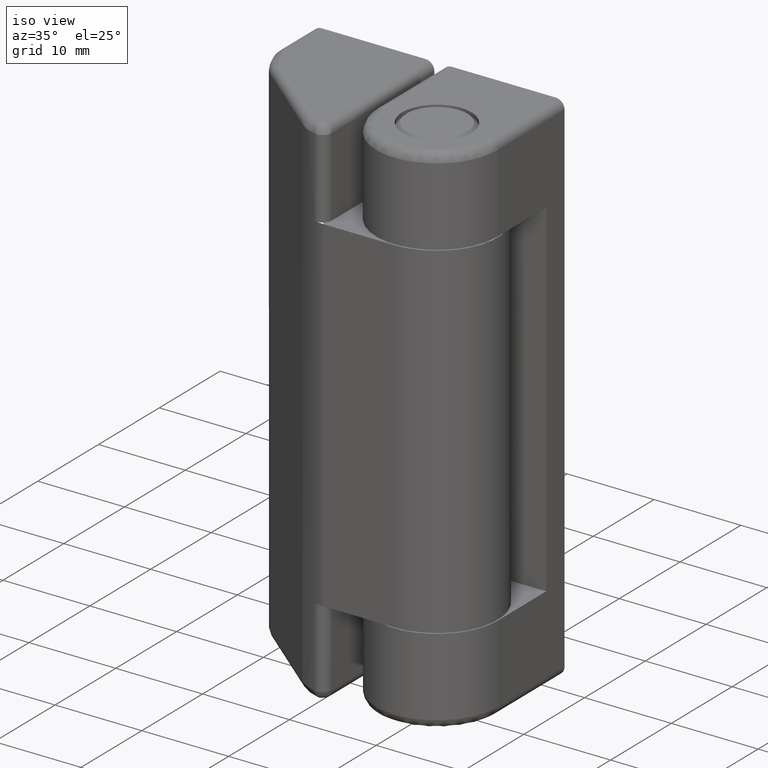
[diagram: clean part render]
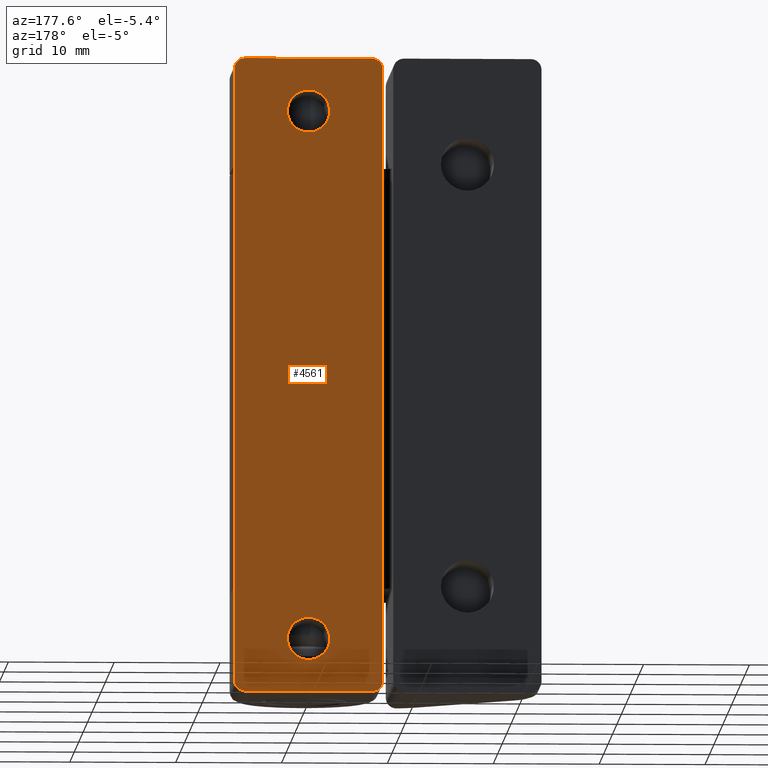
[diagram: tour spotlight — one face highlighted and labeled with its STEP entity id]
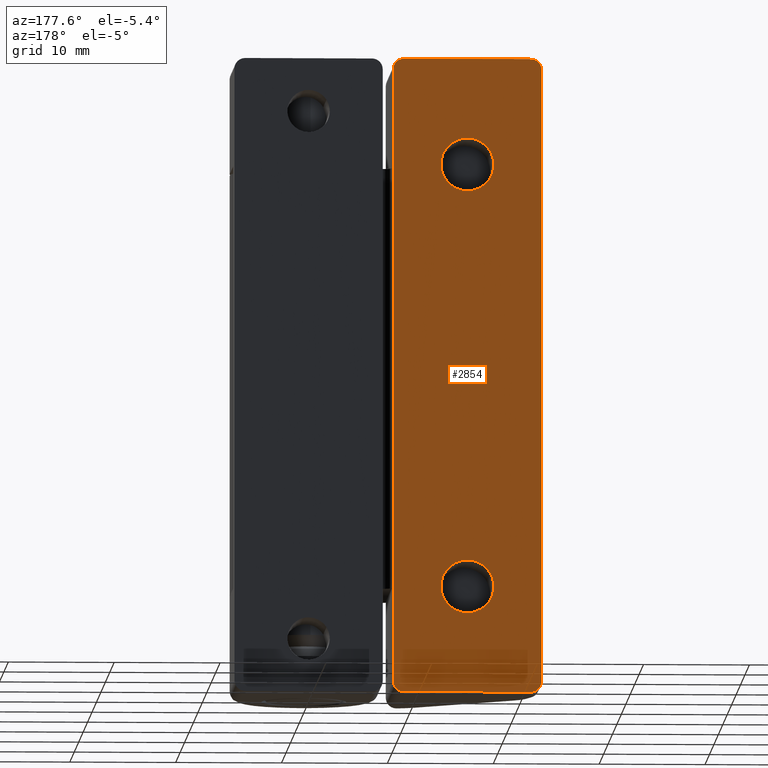
[diagram: tour spotlight — one face highlighted and labeled with its STEP entity id]
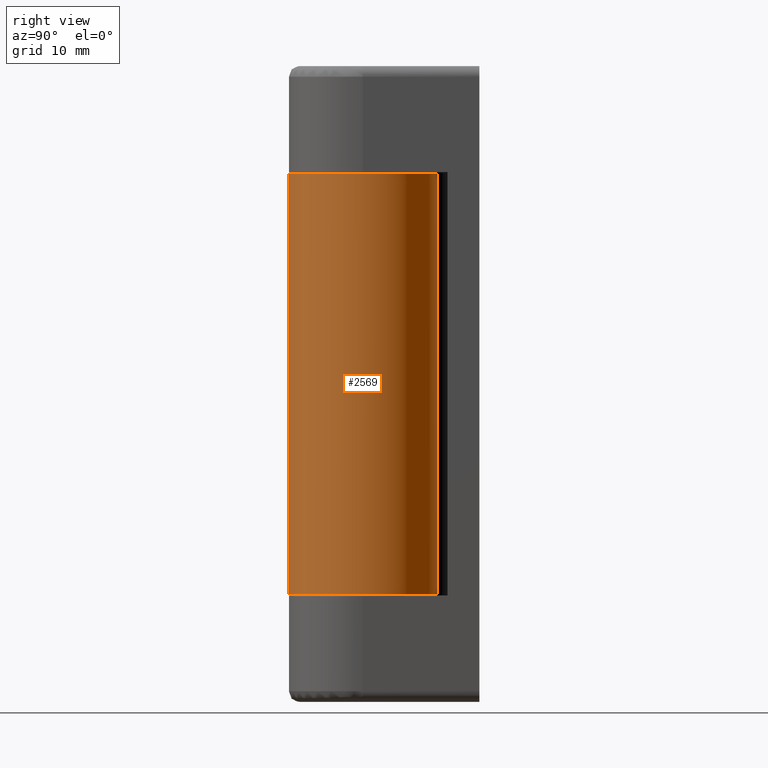
[diagram: tour spotlight — one face highlighted and labeled with its STEP entity id]
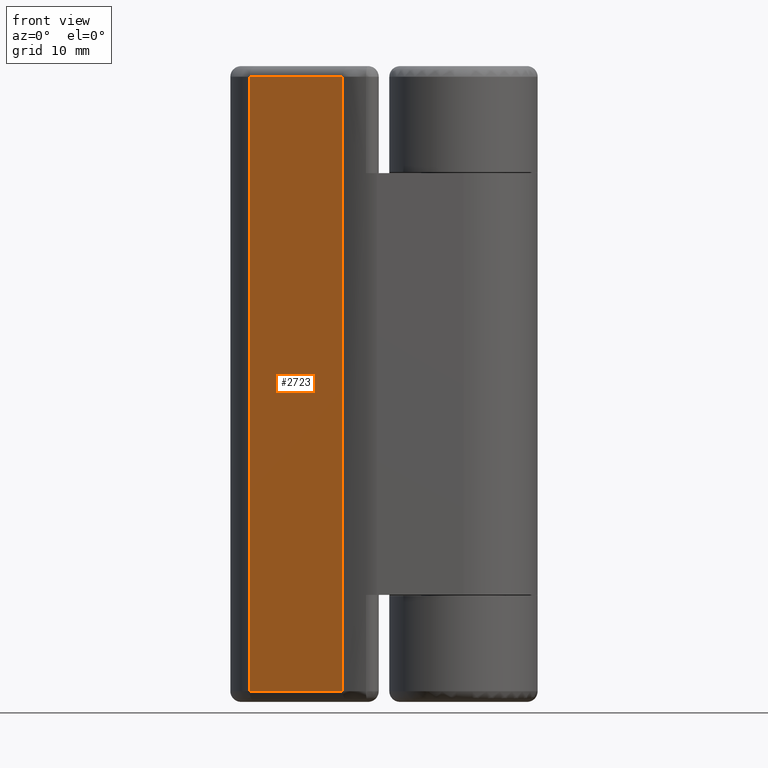
[diagram: tour spotlight — one face highlighted and labeled with its STEP entity id]
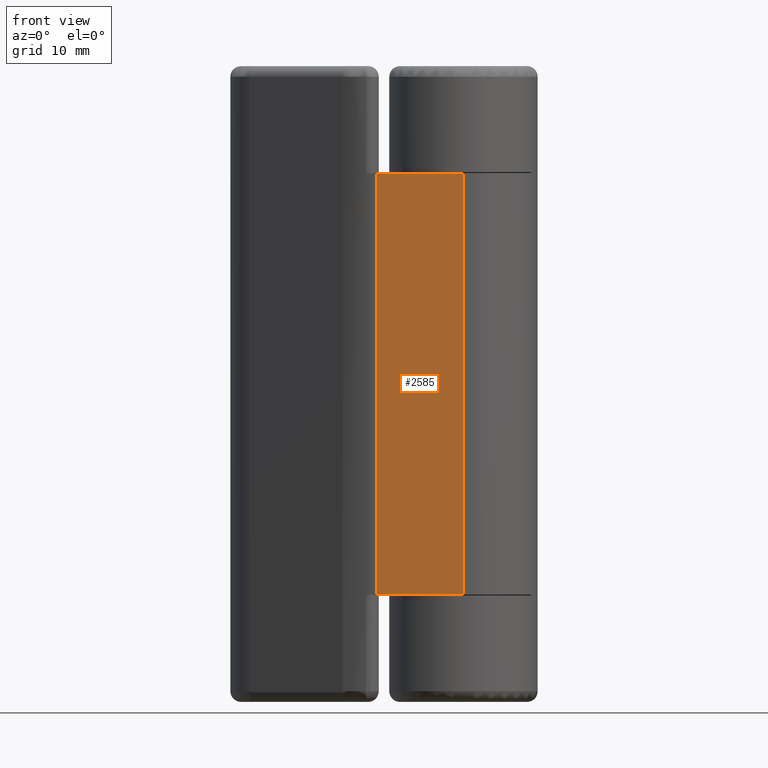
[diagram: tour spotlight — one face highlighted and labeled with its STEP entity id]
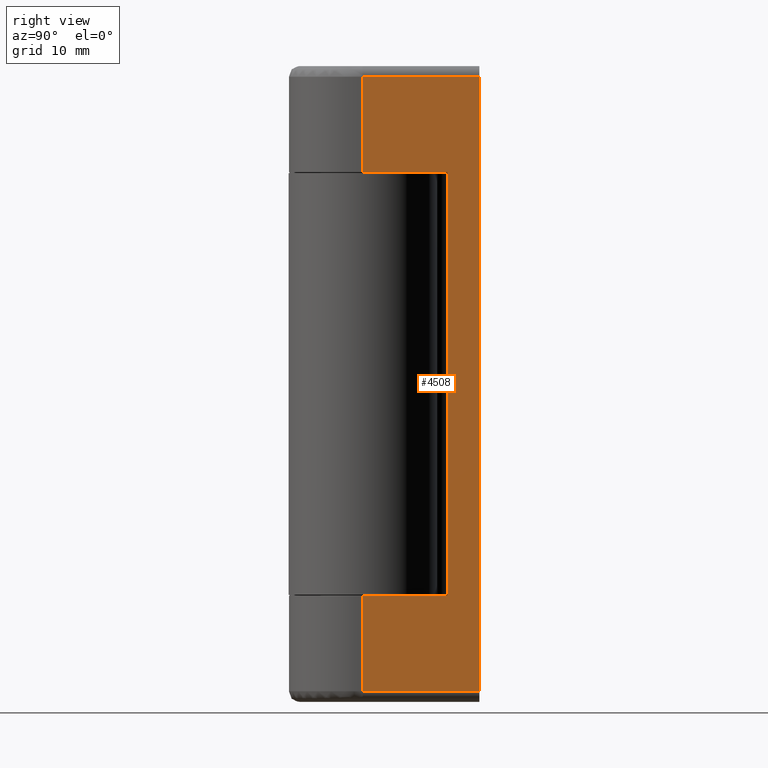
[diagram: tour spotlight — one face highlighted and labeled with its STEP entity id]
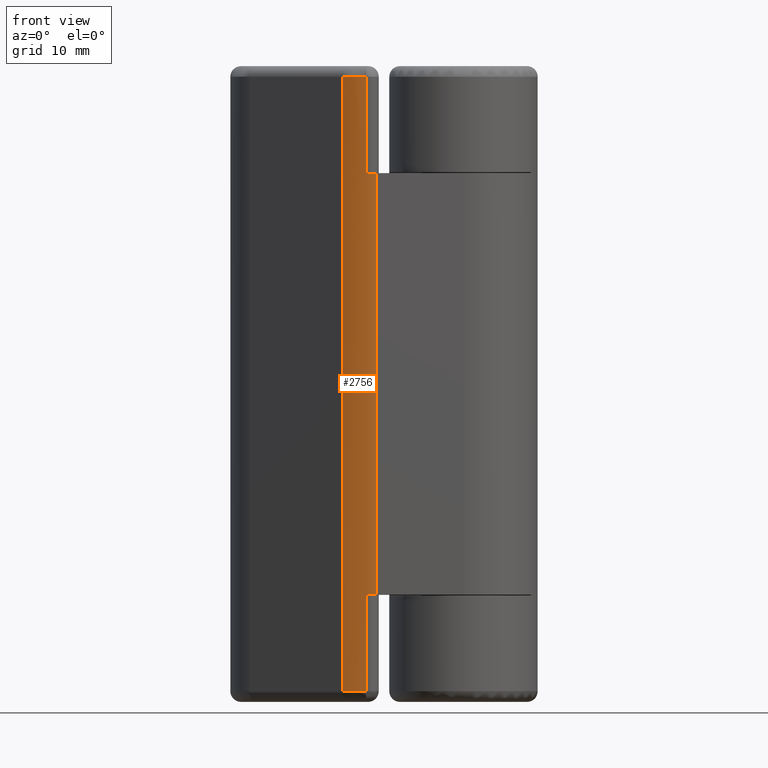
[diagram: tour spotlight — one face highlighted and labeled with its STEP entity id]
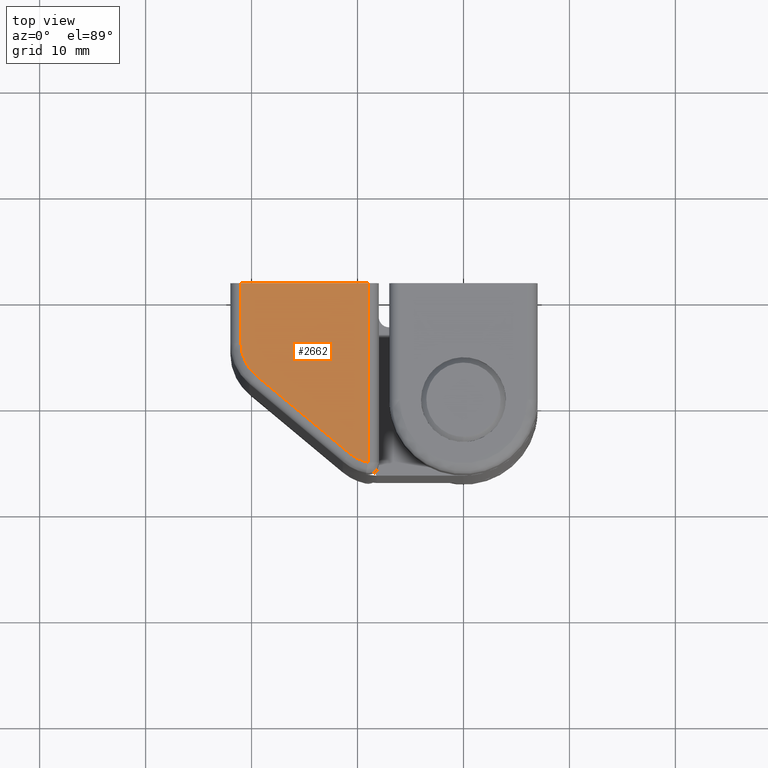
[diagram: tour spotlight — one face highlighted and labeled with its STEP entity id]
A machine part: a face-by-face anatomy tour. The part has 78 B-rep faces; the first image is the clean iso view, then the 8 largest visible faces are spotlighted one at a time (largest first), each with its STEP entity span.

Face 1 — auxiliary view, entity #4561. In plain terms, the highlighted face is a freeform B-spline surface patch.
Definition (entity closure, byte-faithful):
#2922=CARTESIAN_POINT('',(0.0,11.0,7.0));
#2923=VERTEX_POINT('',#2922);
#2924=CARTESIAN_POINT('',(-1.687752892925017,11.0,6.073075101017276));
#2925=VERTEX_POINT('',#2924);
#2926=CARTESIAN_POINT('',(0.0,11.0,7.0));
#2927=CARTESIAN_POINT('',(-1.098413047153339,11.000000000000004,7.000000000000001));
#2928=CARTESIAN_POINT('',(-1.687752892925017,11.000000000000002,6.073075101017276));
#2936=(BOUNDED_CURVE()B_SPLINE_CURVE(2,(#2926,#2927,#2928),.UNSPECIFIED.,.F.,.U.)B_SPLINE_CURVE_WITH_KNOTS((3,3),(0.0,0.158187862921422),.UNSPECIFIED.)CURVE()GEOMETRIC_REPRESENTATION_ITEM()RATIONAL_B_SPLINE_CURVE((1.0,0.814671390606894,0.863876674478544))REPRESENTATION_ITEM(''));
#2937=EDGE_CURVE('',#2923,#2925,#2936,.T.);
#2939=CARTESIAN_POINT('',(0.0,11.0,3.0));
#2940=VERTEX_POINT('',#2939);
#2941=CARTESIAN_POINT('',(0.0,11.0,3.0));
#2942=CARTESIAN_POINT('',(2.000000000000000,11.0,3.0));
#2943=CARTESIAN_POINT('',(2.0,11.0,5.0));
#2944=CARTESIAN_POINT('',(2.000000000000000,11.0,6.999999999999999));
#2945=CARTESIAN_POINT('',(0.0,11.0,7.0));
#2953=(BOUNDED_CURVE()B_SPLINE_CURVE(2,(#2941,#2942,#2943,#2944,#2945),.UNSPECIFIED.,.F.,.U.)B_SPLINE_CURVE_WITH_KNOTS((3,2,3),(0.500000000000000,0.750000000000000,1.0),.UNSPECIFIED.)CURVE()GEOMETRIC_REPRESENTATION_ITEM()RATIONAL_B_SPLINE_CURVE((1.0,0.707106781186548,1.0,0.707106781186548,1.0))REPRESENTATION_ITEM(''));
#2954=EDGE_CURVE('',#2940,#2923,#2953,.T.);
#2956=CARTESIAN_POINT('',(-1.351179258530680,11.0,3.525444266460566));
#2957=VERTEX_POINT('',#2956);
#2958=CARTESIAN_POINT('',(-1.351179258530680,11.0,3.525444266460565));
#2959=CARTESIAN_POINT('',(-0.777756560637760,11.0,3.000000000000000));
#2960=CARTESIAN_POINT('',(0.0,11.0,3.0));
#2968=(BOUNDED_CURVE()B_SPLINE_CURVE(2,(#2958,#2959,#2960),.UNSPECIFIED.,.F.,.U.)B_SPLINE_CURVE_WITH_KNOTS((3,3),(0.381584909335154,0.500000000000000),.UNSPECIFIED.)CURVE()GEOMETRIC_REPRESENTATION_ITEM()RATIONAL_B_SPLINE_CURVE((0.853959795454927,0.861268091756345,1.0))REPRESENTATION_ITEM(''));
#2969=EDGE_CURVE('',#2957,#2940,#2968,.T.);
#3111=CARTESIAN_POINT('',(-1.687752892925017,11.000000000000002,6.073075101017276));
#3112=CARTESIAN_POINT('',(-2.000000000000000,11.0,5.581966922502469));
#3113=CARTESIAN_POINT('',(-2.0,11.0,5.0));
#3114=CARTESIAN_POINT('',(-2.000000000000000,11.0,4.119978001901206));
#3115=CARTESIAN_POINT('',(-1.351179258530680,11.0,3.525444266460565));
#3123=(BOUNDED_CURVE()B_SPLINE_CURVE(2,(#3111,#3112,#3113,#3114,#3115),.UNSPECIFIED.,.F.,.U.)B_SPLINE_CURVE_WITH_KNOTS((3,2,3),(0.158187862921422,0.250000000000000,0.381584909335154),.UNSPECIFIED.)CURVE()GEOMETRIC_REPRESENTATION_ITEM()RATIONAL_B_SPLINE_CURVE((0.863876674478544,0.892435390579654,1.0,0.845838689430202,0.853959795454927))REPRESENTATION_ITEM(''));
#3124=EDGE_CURVE('',#2925,#2957,#3123,.T.);
#3196=CARTESIAN_POINT('',(0.0,11.0,57.0));
#3197=VERTEX_POINT('',#3196);
#3198=CARTESIAN_POINT('',(-1.687752892925018,11.0,56.073075101017267));
#3199=VERTEX_POINT('',#3198);
#3200=CARTESIAN_POINT('',(0.0,11.0,57.0));
#3201=CARTESIAN_POINT('',(-1.098413047153343,11.0,57.000000000000014));
#3202=CARTESIAN_POINT('',(-1.687752892925018,11.000000000000002,56.073075101017281));
#3210=(BOUNDED_CURVE()B_SPLINE_CURVE(2,(#3200,#3201,#3202),.UNSPECIFIED.,.F.,.U.)B_SPLINE_CURVE_WITH_KNOTS((3,3),(0.0,0.158187862921423),.UNSPECIFIED.)CURVE()GEOMETRIC_REPRESENTATION_ITEM()RATIONAL_B_SPLINE_CURVE((1.0,0.814671390606893,0.863876674478544))REPRESENTATION_ITEM(''));
#3211=EDGE_CURVE('',#3197,#3199,#3210,.T.);
#3213=CARTESIAN_POINT('',(0.0,11.0,53.0));
#3214=VERTEX_POINT('',#3213);
#3215=CARTESIAN_POINT('',(0.0,11.0,53.0));
#3216=CARTESIAN_POINT('',(2.000000000000000,11.0,53.0));
#3217=CARTESIAN_POINT('',(2.0,11.0,55.0));
#3218=CARTESIAN_POINT('',(2.000000000000000,11.0,57.000000000000014));
#3219=CARTESIAN_POINT('',(0.0,11.0,57.0));
#3227=(BOUNDED_CURVE()B_SPLINE_CURVE(2,(#3215,#3216,#3217,#3218,#3219),.UNSPECIFIED.,.F.,.U.)B_SPLINE_CURVE_WITH_KNOTS((3,2,3),(0.500000000000000,0.750000000000000,1.0),.UNSPECIFIED.)CURVE()GEOMETRIC_REPRESENTATION_ITEM()RATIONAL_B_SPLINE_CURVE((1.0,0.707106781186548,1.0,0.707106781186548,1.0))REPRESENTATION_ITEM(''));
#3228=EDGE_CURVE('',#3214,#3197,#3227,.T.);
#3230=CARTESIAN_POINT('',(-1.351179258530679,11.0,53.525444266460568));
#3231=VERTEX_POINT('',#3230);
#3232=CARTESIAN_POINT('',(-1.351179258530680,11.0,53.525444266460568));
#3233=CARTESIAN_POINT('',(-0.777756560637760,11.0,53.000000000000014));
#3234=CARTESIAN_POINT('',(0.0,11.0,53.0));
#3242=(BOUNDED_CURVE()B_SPLINE_CURVE(2,(#3232,#3233,#3234),.UNSPECIFIED.,.F.,.U.)B_SPLINE_CURVE_WITH_KNOTS((3,3),(0.381584909335154,0.500000000000000),.UNSPECIFIED.)CURVE()GEOMETRIC_REPRESENTATION_ITEM()RATIONAL_B_SPLINE_CURVE((0.853959795454927,0.861268091756345,1.0))REPRESENTATION_ITEM(''));
#3243=EDGE_CURVE('',#3231,#3214,#3242,.T.);
#3385=CARTESIAN_POINT('',(-1.687752892925018,11.000000000000002,56.073075101017281));
#3386=CARTESIAN_POINT('',(-2.000000000000000,11.0,55.581966922502460));
#3387=CARTESIAN_POINT('',(-2.0,11.0,55.0));
#3388=CARTESIAN_POINT('',(-2.000000000000000,11.0,54.119978001901202));
#3389=CARTESIAN_POINT('',(-1.351179258530680,11.0,53.525444266460568));
#3397=(BOUNDED_CURVE()B_SPLINE_CURVE(2,(#3385,#3386,#3387,#3388,#3389),.UNSPECIFIED.,.F.,.U.)B_SPLINE_CURVE_WITH_KNOTS((3,2,3),(0.158187862921423,0.250000000000000,0.381584909335153),.UNSPECIFIED.)CURVE()GEOMETRIC_REPRESENTATION_ITEM()RATIONAL_B_SPLINE_CURVE((0.863876674478544,0.892435390579654,1.0,0.845838689430203,0.853959795454927))REPRESENTATION_ITEM(''));
#3398=EDGE_CURVE('',#3199,#3231,#3397,.T.);
#3919=CARTESIAN_POINT('',(-7.0,11.0,1.0));
#3920=VERTEX_POINT('',#3919);
#3926=CARTESIAN_POINT('',(-6.0,11.0,0.0));
#3927=VERTEX_POINT('',#3926);
#3928=CARTESIAN_POINT('',(-6.0,11.0,0.0));
#3929=CARTESIAN_POINT('',(-6.999999999999999,11.0,0.0));
#3930=CARTESIAN_POINT('',(-7.0,11.0,1.0));
#3938=(BOUNDED_CURVE()B_SPLINE_CURVE(2,(#3928,#3929,#3930),.UNSPECIFIED.,.F.,.U.)CURVE()GEOMETRIC_REPRESENTATION_ITEM()QUASI_UNIFORM_CURVE()RATIONAL_B_SPLINE_CURVE((1.0,0.707106781186548,1.0))REPRESENTATION_ITEM(''));
#3939=EDGE_CURVE('',#3927,#3920,#3938,.T.);
#4041=CARTESIAN_POINT('',(7.0,11.0,1.0));
#4042=VERTEX_POINT('',#4041);
#4043=CARTESIAN_POINT('',(6.0,11.0,0.0));
#4044=VERTEX_POINT('',#4043);
#4045=CARTESIAN_POINT('',(7.0,11.0,1.0));
#4046=CARTESIAN_POINT('',(6.999999999999999,11.0,0.0));
#4047=CARTESIAN_POINT('',(6.0,11.0,0.0));
#4055=(BOUNDED_CURVE()B_SPLINE_CURVE(2,(#4045,#4046,#4047),.UNSPECIFIED.,.F.,.U.)CURVE()GEOMETRIC_REPRESENTATION_ITEM()QUASI_UNIFORM_CURVE()RATIONAL_B_SPLINE_CURVE((1.0,0.707106781186548,1.0))REPRESENTATION_ITEM(''));
#4056=EDGE_CURVE('',#4042,#4044,#4055,.T.);
#4103=CARTESIAN_POINT('',(-6.0,11.0,60.0));
#4104=VERTEX_POINT('',#4103);
#4110=CARTESIAN_POINT('',(-7.0,11.0,59.0));
#4111=VERTEX_POINT('',#4110);
#4112=CARTESIAN_POINT('',(-7.0,11.0,59.0));
#4113=CARTESIAN_POINT('',(-6.999999999999999,11.0,60.0));
#4114=CARTESIAN_POINT('',(-6.0,11.0,60.0));
#4122=(BOUNDED_CURVE()B_SPLINE_CURVE(2,(#4112,#4113,#4114),.UNSPECIFIED.,.F.,.U.)CURVE()GEOMETRIC_REPRESENTATION_ITEM()QUASI_UNIFORM_CURVE()RATIONAL_B_SPLINE_CURVE((1.0,0.707106781186548,1.0))REPRESENTATION_ITEM(''));
#4123=EDGE_CURVE('',#4111,#4104,#4122,.T.);
#4225=CARTESIAN_POINT('',(6.0,11.0,60.0));
#4226=VERTEX_POINT('',#4225);
#4227=CARTESIAN_POINT('',(7.0,11.0,59.0));
#4228=VERTEX_POINT('',#4227);
#4229=CARTESIAN_POINT('',(6.0,11.0,60.0));
#4230=CARTESIAN_POINT('',(6.999999999999999,11.0,60.0));
#4231=CARTESIAN_POINT('',(7.0,11.0,59.0));
#4239=(BOUNDED_CURVE()B_SPLINE_CURVE(2,(#4229,#4230,#4231),.UNSPECIFIED.,.F.,.U.)CURVE()GEOMETRIC_REPRESENTATION_ITEM()QUASI_UNIFORM_CURVE()RATIONAL_B_SPLINE_CURVE((1.0,0.707106781186548,1.0))REPRESENTATION_ITEM(''));
#4240=EDGE_CURVE('',#4226,#4228,#4239,.T.);
#4391=CARTESIAN_POINT('',(-6.0,11.0,0.0));
#4392=CARTESIAN_POINT('',(6.0,11.0,0.0));
#4393=QUASI_UNIFORM_CURVE('',1,(#4391,#4392),.UNSPECIFIED.,.F.,.U.);
#4394=EDGE_CURVE('',#3927,#4044,#4393,.T.);
#4411=CARTESIAN_POINT('',(-6.0,11.0,60.0));
#4412=CARTESIAN_POINT('',(6.0,11.0,60.0));
#4413=QUASI_UNIFORM_CURVE('',1,(#4411,#4412),.UNSPECIFIED.,.F.,.U.);
#4414=EDGE_CURVE('',#4104,#4226,#4413,.T.);
#4433=CARTESIAN_POINT('',(-7.0,11.0,59.0));
#4434=CARTESIAN_POINT('',(-7.0,11.0,1.0));
#4435=QUASI_UNIFORM_CURVE('',1,(#4433,#4434),.UNSPECIFIED.,.F.,.U.);
#4436=EDGE_CURVE('',#4111,#3920,#4435,.T.);
#4492=CARTESIAN_POINT('',(7.0,11.0,59.0));
#4493=CARTESIAN_POINT('',(7.0,11.0,1.0));
#4494=QUASI_UNIFORM_CURVE('',1,(#4492,#4493),.UNSPECIFIED.,.F.,.U.);
#4495=EDGE_CURVE('',#4228,#4042,#4494,.T.);
#4534=CARTESIAN_POINT('',(-7.699299972865286,11.0,-2.996999883708359));
#4535=CARTESIAN_POINT('',(-7.699299972865286,11.0,62.997001493033771));
#4536=CARTESIAN_POINT('',(7.699300348374547,11.0,-2.996999883708359));
#4537=CARTESIAN_POINT('',(7.699300348374547,11.0,62.997001493033771));
#4538=B_SPLINE_SURFACE_WITH_KNOTS('',1,1,((#4534,#4536),(#4535,#4537)),.UNSPECIFIED.,.F.,.F.,.U.,(2,2),(2,2),(0.0,65.994001376742133),(0.0,15.398600321239829),.UNSPECIFIED.);
#4539=ORIENTED_EDGE('',*,*,#4394,.F.);
#4540=ORIENTED_EDGE('',*,*,#3939,.T.);
#4541=ORIENTED_EDGE('',*,*,#4436,.F.);
#4542=ORIENTED_EDGE('',*,*,#4123,.T.);
#4543=ORIENTED_EDGE('',*,*,#4414,.T.);
#4544=ORIENTED_EDGE('',*,*,#4240,.T.);
#4545=ORIENTED_EDGE('',*,*,#4495,.T.);
#4546=ORIENTED_EDGE('',*,*,#4056,.T.);
#4547=EDGE_LOOP('',(#4539,#4540,#4541,#4542,#4543,#4544,#4545,#4546));
#4548=FACE_OUTER_BOUND('',#4547,.T.);
#4549=ORIENTED_EDGE('',*,*,#3228,.T.);
#4550=ORIENTED_EDGE('',*,*,#3211,.T.);
#4551=ORIENTED_EDGE('',*,*,#3398,.T.);
#4552=ORIENTED_EDGE('',*,*,#3243,.T.);
#4553=EDGE_LOOP('',(#4549,#4550,#4551,#4552));
#4554=FACE_BOUND('',#4553,.T.);
#4555=ORIENTED_EDGE('',*,*,#2954,.T.);
#4556=ORIENTED_EDGE('',*,*,#2937,.T.);
#4557=ORIENTED_EDGE('',*,*,#3124,.T.);
#4558=ORIENTED_EDGE('',*,*,#2969,.T.);
#4559=EDGE_LOOP('',(#4555,#4556,#4557,#4558));
#4560=FACE_BOUND('',#4559,.T.);
#4561=ADVANCED_FACE('',(#4548,#4554,#4560),#4538,.T.);

Face 2 — auxiliary view, entity #2854. In plain terms, the highlighted face is a freeform B-spline surface patch.
Definition (entity closure, byte-faithful):
#1116=CARTESIAN_POINT('',(-17.492293334330132,11.0,50.196147739353762));
#1117=VERTEX_POINT('',#1116);
#1123=CARTESIAN_POINT('',(-15.0,11.0,52.500000000000007));
#1124=VERTEX_POINT('',#1123);
#1125=CARTESIAN_POINT('',(-15.0,11.0,52.500000000000007));
#1126=CARTESIAN_POINT('',(-17.310976229081998,11.0,52.500000000000007));
#1127=CARTESIAN_POINT('',(-17.492293334330125,10.999999999999996,50.196147739353755));
#1135=(BOUNDED_CURVE()B_SPLINE_CURVE(2,(#1125,#1126,#1127),.UNSPECIFIED.,.F.,.U.)B_SPLINE_CURVE_WITH_KNOTS((3,3),(0.0,0.236331300628070),.UNSPECIFIED.)CURVE()GEOMETRIC_REPRESENTATION_ITEM()RATIONAL_B_SPLINE_CURVE((1.0,0.723120658610700,0.969723356162013))REPRESENTATION_ITEM(''));
#1136=EDGE_CURVE('',#1124,#1117,#1135,.T.);
#1138=CARTESIAN_POINT('',(-12.507706665669870,11.0,49.803852260646238));
#1139=VERTEX_POINT('',#1138);
#1140=CARTESIAN_POINT('',(-12.507706665669870,10.999999999999996,49.803852260646238));
#1141=CARTESIAN_POINT('',(-12.500000000000002,11.000000000000004,49.901774732446526));
#1142=CARTESIAN_POINT('',(-12.500000000000000,11.0,50.0));
#1143=CARTESIAN_POINT('',(-12.499999999999996,11.0,52.500000000000007));
#1144=CARTESIAN_POINT('',(-15.0,11.0,52.500000000000007));
#1152=(BOUNDED_CURVE()B_SPLINE_CURVE(2,(#1140,#1141,#1142,#1143,#1144),.UNSPECIFIED.,.F.,.U.)B_SPLINE_CURVE_WITH_KNOTS((3,2,3),(0.736331300628070,0.750000000000000,1.0),.UNSPECIFIED.)CURVE()GEOMETRIC_REPRESENTATION_ITEM()RATIONAL_B_SPLINE_CURVE((0.969723356162013,0.983986122575848,1.0,0.707106781186548,1.0))REPRESENTATION_ITEM(''));
#1153=EDGE_CURVE('',#1139,#1124,#1152,.T.);
#1229=CARTESIAN_POINT('',(-15.0,11.0,47.500000000000000));
#1230=VERTEX_POINT('',#1229);
#1231=CARTESIAN_POINT('',(-15.0,11.0,47.500000000000000));
#1232=CARTESIAN_POINT('',(-12.689023770917995,11.0,47.500000000000007));
#1233=CARTESIAN_POINT('',(-12.507706665669870,10.999999999999996,49.803852260646238));
#1241=(BOUNDED_CURVE()B_SPLINE_CURVE(2,(#1231,#1232,#1233),.UNSPECIFIED.,.F.,.U.)B_SPLINE_CURVE_WITH_KNOTS((3,3),(0.500000000000000,0.736331300628070),.UNSPECIFIED.)CURVE()GEOMETRIC_REPRESENTATION_ITEM()RATIONAL_B_SPLINE_CURVE((1.0,0.723120658610700,0.969723356162013))REPRESENTATION_ITEM(''));
#1242=EDGE_CURVE('',#1230,#1139,#1241,.T.);
#1244=CARTESIAN_POINT('',(-17.492293334330132,11.000000000000005,50.196147739353762));
#1245=CARTESIAN_POINT('',(-17.500000000000004,11.000000000000002,50.098225267553481));
#1246=CARTESIAN_POINT('',(-17.500000000000000,11.0,50.0));
#1247=CARTESIAN_POINT('',(-17.499999999999996,11.0,47.500000000000021));
#1248=CARTESIAN_POINT('',(-15.0,11.0,47.500000000000000));
#1256=(BOUNDED_CURVE()B_SPLINE_CURVE(2,(#1244,#1245,#1246,#1247,#1248),.UNSPECIFIED.,.F.,.U.)B_SPLINE_CURVE_WITH_KNOTS((3,2,3),(0.236331300628070,0.250000000000000,0.500000000000000),.UNSPECIFIED.)CURVE()GEOMETRIC_REPRESENTATION_ITEM()RATIONAL_B_SPLINE_CURVE((0.969723356162013,0.983986122575848,1.0,0.707106781186548,1.0))REPRESENTATION_ITEM(''));
#1257=EDGE_CURVE('',#1117,#1230,#1256,.T.);
#1298=CARTESIAN_POINT('',(-17.492293334330132,11.0,10.196147739353760));
#1299=VERTEX_POINT('',#1298);
#1305=CARTESIAN_POINT('',(-15.0,11.0,12.500000000000000));
#1306=VERTEX_POINT('',#1305);
#1307=CARTESIAN_POINT('',(-15.0,11.0,12.500000000000000));
#1308=CARTESIAN_POINT('',(-17.310976229081998,11.0,12.499999999999998));
#1309=CARTESIAN_POINT('',(-17.492293334330125,11.000000000000005,10.196147739353757));
#1317=(BOUNDED_CURVE()B_SPLINE_CURVE(2,(#1307,#1308,#1309),.UNSPECIFIED.,.F.,.U.)B_SPLINE_CURVE_WITH_KNOTS((3,3),(0.0,0.236331300628070),.UNSPECIFIED.)CURVE()GEOMETRIC_REPRESENTATION_ITEM()RATIONAL_B_SPLINE_CURVE((1.0,0.723120658610700,0.969723356162013))REPRESENTATION_ITEM(''));
#1318=EDGE_CURVE('',#1306,#1299,#1317,.T.);
#1320=CARTESIAN_POINT('',(-12.507706665669870,11.0,9.803852260646243));
#1321=VERTEX_POINT('',#1320);
#1322=CARTESIAN_POINT('',(-12.507706665669868,11.000000000000004,9.803852260646243));
#1323=CARTESIAN_POINT('',(-12.500000000000002,11.000000000000002,9.901774732446524));
#1324=CARTESIAN_POINT('',(-12.500000000000000,11.0,10.0));
#1325=CARTESIAN_POINT('',(-12.499999999999996,11.0,12.500000000000000));
#1326=CARTESIAN_POINT('',(-15.0,11.0,12.500000000000000));
#1334=(BOUNDED_CURVE()B_SPLINE_CURVE(2,(#1322,#1323,#1324,#1325,#1326),.UNSPECIFIED.,.F.,.U.)B_SPLINE_CURVE_WITH_KNOTS((3,2,3),(0.736331300628070,0.750000000000000,1.0),.UNSPECIFIED.)CURVE()GEOMETRIC_REPRESENTATION_ITEM()RATIONAL_B_SPLINE_CURVE((0.969723356162013,0.983986122575848,1.0,0.707106781186548,1.0))REPRESENTATION_ITEM(''));
#1335=EDGE_CURVE('',#1321,#1306,#1334,.T.);
#1411=CARTESIAN_POINT('',(-15.0,11.0,7.500000000000000));
#1412=VERTEX_POINT('',#1411);
#1413=CARTESIAN_POINT('',(-15.0,11.0,7.500000000000000));
#1414=CARTESIAN_POINT('',(-12.689023770917995,11.0,7.500000000000000));
#1415=CARTESIAN_POINT('',(-12.507706665669870,10.999999999999996,9.803852260646243));
#1423=(BOUNDED_CURVE()B_SPLINE_CURVE(2,(#1413,#1414,#1415),.UNSPECIFIED.,.F.,.U.)B_SPLINE_CURVE_WITH_KNOTS((3,3),(0.500000000000000,0.736331300628070),.UNSPECIFIED.)CURVE()GEOMETRIC_REPRESENTATION_ITEM()RATIONAL_B_SPLINE_CURVE((1.0,0.723120658610700,0.969723356162013))REPRESENTATION_ITEM(''));
#1424=EDGE_CURVE('',#1412,#1321,#1423,.T.);
#1426=CARTESIAN_POINT('',(-17.492293334330132,11.000000000000004,10.196147739353757));
#1427=CARTESIAN_POINT('',(-17.500000000000004,11.000000000000002,10.098225267553476));
#1428=CARTESIAN_POINT('',(-17.500000000000000,11.0,10.0));
#1429=CARTESIAN_POINT('',(-17.499999999999996,11.0,7.500000000000000));
#1430=CARTESIAN_POINT('',(-15.0,11.0,7.500000000000000));
#1438=(BOUNDED_CURVE()B_SPLINE_CURVE(2,(#1426,#1427,#1428,#1429,#1430),.UNSPECIFIED.,.F.,.U.)B_SPLINE_CURVE_WITH_KNOTS((3,2,3),(0.236331300628070,0.250000000000000,0.500000000000000),.UNSPECIFIED.)CURVE()GEOMETRIC_REPRESENTATION_ITEM()RATIONAL_B_SPLINE_CURVE((0.969723356162013,0.983986122575848,1.0,0.707106781186548,1.0))REPRESENTATION_ITEM(''));
#1439=EDGE_CURVE('',#1299,#1412,#1438,.T.);
#1666=CARTESIAN_POINT('',(-21.0,11.0,60.0));
#1667=VERTEX_POINT('',#1666);
#1673=CARTESIAN_POINT('',(-22.0,11.0,59.0));
#1674=VERTEX_POINT('',#1673);
#1675=CARTESIAN_POINT('',(-22.0,11.0,59.0));
#1676=CARTESIAN_POINT('',(-22.000000000000007,11.0,60.0));
#1677=CARTESIAN_POINT('',(-21.0,11.0,60.0));
#1685=(BOUNDED_CURVE()B_SPLINE_CURVE(2,(#1675,#1676,#1677),.UNSPECIFIED.,.F.,.U.)CURVE()GEOMETRIC_REPRESENTATION_ITEM()QUASI_UNIFORM_CURVE()RATIONAL_B_SPLINE_CURVE((1.0,0.707106781186548,1.0))REPRESENTATION_ITEM(''));
#1686=EDGE_CURVE('',#1674,#1667,#1685,.T.);
#1944=CARTESIAN_POINT('',(-8.0,11.0,59.0));
#1945=VERTEX_POINT('',#1944);
#1951=CARTESIAN_POINT('',(-9.0,11.0,60.0));
#1952=VERTEX_POINT('',#1951);
#1953=CARTESIAN_POINT('',(-9.0,11.0,60.0));
#1954=CARTESIAN_POINT('',(-8.0,11.0,60.0));
#1955=CARTESIAN_POINT('',(-8.0,11.0,59.0));
#1963=(BOUNDED_CURVE()B_SPLINE_CURVE(2,(#1953,#1954,#1955),.UNSPECIFIED.,.F.,.U.)CURVE()GEOMETRIC_REPRESENTATION_ITEM()QUASI_UNIFORM_CURVE()RATIONAL_B_SPLINE_CURVE((1.0,0.707106781186548,1.0))REPRESENTATION_ITEM(''));
#1964=EDGE_CURVE('',#1952,#1945,#1963,.T.);
#2005=CARTESIAN_POINT('',(-22.0,11.0,1.0));
#2006=VERTEX_POINT('',#2005);
#2012=CARTESIAN_POINT('',(-21.0,11.0,0.0));
#2013=VERTEX_POINT('',#2012);
#2014=CARTESIAN_POINT('',(-21.0,11.0,0.0));
#2015=CARTESIAN_POINT('',(-22.000000000000007,11.0,0.0));
#2016=CARTESIAN_POINT('',(-22.0,11.0,1.0));
#2024=(BOUNDED_CURVE()B_SPLINE_CURVE(2,(#2014,#2015,#2016),.UNSPECIFIED.,.F.,.U.)CURVE()GEOMETRIC_REPRESENTATION_ITEM()QUASI_UNIFORM_CURVE()RATIONAL_B_SPLINE_CURVE((1.0,0.707106781186548,1.0))REPRESENTATION_ITEM(''));
#2025=EDGE_CURVE('',#2013,#2006,#2024,.T.);
#2280=CARTESIAN_POINT('',(-8.0,11.0,1.0));
#2281=VERTEX_POINT('',#2280);
#2282=CARTESIAN_POINT('',(-9.0,11.0,0.0));
#2283=VERTEX_POINT('',#2282);
#2284=CARTESIAN_POINT('',(-8.0,11.0,1.0));
#2285=CARTESIAN_POINT('',(-8.0,11.0,0.0));
#2286=CARTESIAN_POINT('',(-9.0,11.0,0.0));
#2294=(BOUNDED_CURVE()B_SPLINE_CURVE(2,(#2284,#2285,#2286),.UNSPECIFIED.,.F.,.U.)CURVE()GEOMETRIC_REPRESENTATION_ITEM()QUASI_UNIFORM_CURVE()RATIONAL_B_SPLINE_CURVE((1.0,0.707106781186548,1.0))REPRESENTATION_ITEM(''));
#2295=EDGE_CURVE('',#2281,#2283,#2294,.T.);
#2634=CARTESIAN_POINT('',(-21.0,11.0,0.0));
#2635=CARTESIAN_POINT('',(-9.0,11.0,0.0));
#2636=QUASI_UNIFORM_CURVE('',1,(#2634,#2635),.UNSPECIFIED.,.F.,.U.);
#2637=EDGE_CURVE('',#2013,#2283,#2636,.T.);
#2650=CARTESIAN_POINT('',(-21.0,11.0,60.0));
#2651=CARTESIAN_POINT('',(-9.0,11.0,60.0));
#2652=QUASI_UNIFORM_CURVE('',1,(#2650,#2651),.UNSPECIFIED.,.F.,.U.);
#2653=EDGE_CURVE('',#1667,#1952,#2652,.T.);
#2674=CARTESIAN_POINT('',(-22.0,11.0,59.0));
#2675=CARTESIAN_POINT('',(-22.0,11.0,1.0));
#2676=QUASI_UNIFORM_CURVE('',1,(#2674,#2675),.UNSPECIFIED.,.F.,.U.);
#2677=EDGE_CURVE('',#1674,#2006,#2676,.T.);
#2812=CARTESIAN_POINT('',(-8.0,11.0,59.0));
#2813=CARTESIAN_POINT('',(-8.0,11.0,1.0));
#2814=QUASI_UNIFORM_CURVE('',1,(#2812,#2813),.UNSPECIFIED.,.F.,.U.);
#2815=EDGE_CURVE('',#1945,#2281,#2814,.T.);
#2827=CARTESIAN_POINT('',(-22.699299972865280,11.0,-2.996999883708359));
#2828=CARTESIAN_POINT('',(-22.699299972865280,11.0,62.997001493033771));
#2829=CARTESIAN_POINT('',(-7.300699651625455,11.0,-2.996999883708359));
#2830=CARTESIAN_POINT('',(-7.300699651625455,11.0,62.997001493033771));
#2831=B_SPLINE_SURFACE_WITH_KNOTS('',1,1,((#2827,#2829),(#2828,#2830)),.UNSPECIFIED.,.F.,.F.,.U.,(2,2),(2,2),(0.0,65.994001376742133),(0.0,15.398600321239829),.UNSPECIFIED.);
#2832=ORIENTED_EDGE('',*,*,#2677,.F.);
#2833=ORIENTED_EDGE('',*,*,#1686,.T.);
#2834=ORIENTED_EDGE('',*,*,#2653,.T.);
#2835=ORIENTED_EDGE('',*,*,#1964,.T.);
#2836=ORIENTED_EDGE('',*,*,#2815,.T.);
#2837=ORIENTED_EDGE('',*,*,#2295,.T.);
#2838=ORIENTED_EDGE('',*,*,#2637,.F.);
#2839=ORIENTED_EDGE('',*,*,#2025,.T.);
#2840=EDGE_LOOP('',(#2832,#2833,#2834,#2835,#2836,#2837,#2838,#2839));
#2841=FACE_OUTER_BOUND('',#2840,.T.);
#2842=ORIENTED_EDGE('',*,*,#1424,.T.);
#2843=ORIENTED_EDGE('',*,*,#1335,.T.);
#2844=ORIENTED_EDGE('',*,*,#1318,.T.);
#2845=ORIENTED_EDGE('',*,*,#1439,.T.);
#2846=EDGE_LOOP('',(#2842,#2843,#2844,#2845));
#2847=FACE_BOUND('',#2846,.T.);
#2848=ORIENTED_EDGE('',*,*,#1242,.T.);
#2849=ORIENTED_EDGE('',*,*,#1153,.T.);
#2850=ORIENTED_EDGE('',*,*,#1136,.T.);
#2851=ORIENTED_EDGE('',*,*,#1257,.T.);
#2852=EDGE_LOOP('',(#2848,#2849,#2850,#2851));
#2853=FACE_BOUND('',#2852,.T.);
#2854=ADVANCED_FACE('',(#2841,#2847,#2853),#2831,.T.);

Face 3 — right view, entity #2569. In plain terms, the highlighted face is a freeform B-spline surface patch.
Definition (entity closure, byte-faithful):
#2340=CARTESIAN_POINT('',(2.060929E-009,6.999998510570640,10.100000000000000));
#2341=VERTEX_POINT('',#2340);
#2349=CARTESIAN_POINT('',(0.0,-7.0,10.100000000000000));
#2350=VERTEX_POINT('',#2349);
#2351=CARTESIAN_POINT('',(2.060929E-009,6.999998510570642,10.100000000000000));
#2352=CARTESIAN_POINT('',(4.045757466172233,7.005596652581271,10.099999999999998));
#2353=CARTESIAN_POINT('',(6.070253964114953,3.502797953337481,10.100000000000000));
#2354=CARTESIAN_POINT('',(8.094750462057673,-0.000000745906305,10.099999999999998));
#2355=CARTESIAN_POINT('',(6.070253963083664,-3.502799444554042,10.100000000000000));
#2356=CARTESIAN_POINT('',(4.045757464109656,-7.005598143201780,10.099999999999998));
#2357=CARTESIAN_POINT('',(4.082699E-016,-7.000000000000005,10.100000000000000));
#2365=(BOUNDED_CURVE()B_SPLINE_CURVE(2,(#2351,#2352,#2353,#2354,#2355,#2356,#2357),.UNSPECIFIED.,.F.,.U.)B_SPLINE_CURVE_WITH_KNOTS((3,2,2,3),(0.0,0.333333333333333,0.666666666666667,1.0),.UNSPECIFIED.)CURVE()GEOMETRIC_REPRESENTATION_ITEM()RATIONAL_B_SPLINE_CURVE((1.0,0.865794694001259,1.0,0.865794694001259,1.0,0.865794694001259,1.0))REPRESENTATION_ITEM(''));
#2366=EDGE_CURVE('',#2341,#2350,#2365,.T.);
#2441=CARTESIAN_POINT('',(2.060929E-009,6.999998510570640,49.899999999999999));
#2442=VERTEX_POINT('',#2441);
#2504=CARTESIAN_POINT('',(0.0,-7.0,49.899999999999999));
#2505=VERTEX_POINT('',#2504);
#2511=CARTESIAN_POINT('',(2.060929E-009,6.999998510570642,49.899999999999999));
#2512=CARTESIAN_POINT('',(4.045757466172233,7.005596652581271,49.899999999999991));
#2513=CARTESIAN_POINT('',(6.070253964114953,3.502797953337481,49.899999999999999));
#2514=CARTESIAN_POINT('',(8.094750462057673,-0.000000745906305,49.899999999999991));
#2515=CARTESIAN_POINT('',(6.070253963083664,-3.502799444554042,49.899999999999999));
#2516=CARTESIAN_POINT('',(4.045757464109656,-7.005598143201780,49.899999999999991));
#2517=CARTESIAN_POINT('',(4.082699E-016,-7.000000000000005,49.899999999999999));
#2525=(BOUNDED_CURVE()B_SPLINE_CURVE(2,(#2511,#2512,#2513,#2514,#2515,#2516,#2517),.UNSPECIFIED.,.F.,.U.)B_SPLINE_CURVE_WITH_KNOTS((3,2,2,3),(0.0,0.333333333333333,0.666666666666667,1.0),.UNSPECIFIED.)CURVE()GEOMETRIC_REPRESENTATION_ITEM()RATIONAL_B_SPLINE_CURVE((1.0,0.865794694001259,1.0,0.865794694001259,1.0,0.865794694001259,1.0))REPRESENTATION_ITEM(''));
#2526=EDGE_CURVE('',#2442,#2505,#2525,.T.);
#2537=CARTESIAN_POINT('',(-0.285973003106688,-6.993760046832258,50.895000000000003));
#2538=CARTESIAN_POINT('',(-0.285973003106688,-6.993760046832258,9.080125000000002));
#2539=CARTESIAN_POINT('',(7.148612090110605,-7.308054768594181,50.894999999999996));
#2540=CARTESIAN_POINT('',(7.148612090110605,-7.308054768594181,9.080125000000002));
#2541=CARTESIAN_POINT('',(7.008450026872967,0.131850558521558,50.895000000000003));
#2542=CARTESIAN_POINT('',(7.008450026872967,0.131850558521558,9.080125000000002));
#2543=CARTESIAN_POINT('',(6.868287963635329,7.571755885637297,50.894999999999996));
#2544=CARTESIAN_POINT('',(6.868287963635329,7.571755885637297,9.080125000000002));
#2545=CARTESIAN_POINT('',(-0.549183751064263,6.977659898403189,50.895000000000003));
#2546=CARTESIAN_POINT('',(-0.549183751064263,6.977659898403189,9.080125000000002));
#2554=(BOUNDED_SURFACE()B_SPLINE_SURFACE(1,2,((#2537,#2539,#2541,#2543,#2545),(#2538,#2540,#2542,#2544,#2546)),.UNSPECIFIED.,.F.,.F.,.U.)B_SPLINE_SURFACE_WITH_KNOTS((2,2),(3,2,3),(0.0,41.814874999999986),(0.0,12.102189867841011,24.204379735682028),.UNSPECIFIED.)GEOMETRIC_REPRESENTATION_ITEM()RATIONAL_B_SPLINE_SURFACE(((1.0,0.685182990326359,1.0,0.685182990326359,1.0),(1.0,0.685182990326359,1.0,0.685182990326359,1.0)))REPRESENTATION_ITEM('')SURFACE());
#2555=ORIENTED_EDGE('',*,*,#2366,.F.);
#2556=CARTESIAN_POINT('',(2.060929E-009,6.999998510570640,49.899999999999999));
#2557=CARTESIAN_POINT('',(2.060929E-009,6.999998510570640,10.100000000000000));
#2558=QUASI_UNIFORM_CURVE('',1,(#2556,#2557),.UNSPECIFIED.,.F.,.U.);
#2559=EDGE_CURVE('',#2442,#2341,#2558,.T.);
#2560=ORIENTED_EDGE('',*,*,#2559,.F.);
#2561=ORIENTED_EDGE('',*,*,#2526,.T.);
#2562=CARTESIAN_POINT('',(0.0,-7.0,49.899999999999999));
#2563=CARTESIAN_POINT('',(0.0,-7.0,10.100000000000000));
#2564=QUASI_UNIFORM_CURVE('',1,(#2562,#2563),.UNSPECIFIED.,.F.,.U.);
#2565=EDGE_CURVE('',#2505,#2350,#2564,.T.);
#2566=ORIENTED_EDGE('',*,*,#2565,.T.);
#2567=EDGE_LOOP('',(#2555,#2560,#2561,#2566));
#2568=FACE_OUTER_BOUND('',#2567,.T.);
#2569=ADVANCED_FACE('',(#2568),#2554,.T.);

Face 4 — front view, entity #2723. In plain terms, the highlighted face is a freeform B-spline surface patch.
Definition (entity closure, byte-faithful):
#1713=CARTESIAN_POINT('',(-20.200928000000001,1.500767000000000,59.0));
#1714=VERTEX_POINT('',#1713);
#1774=CARTESIAN_POINT('',(-11.393728451765121,-5.838558126247491,59.0));
#1775=VERTEX_POINT('',#1774);
#1799=CARTESIAN_POINT('',(-11.393728451765121,-5.838558126247491,59.0));
#1800=CARTESIAN_POINT('',(-20.200928000000001,1.500767000000000,59.0));
#1801=QUASI_UNIFORM_CURVE('',1,(#1799,#1800),.UNSPECIFIED.,.F.,.U.);
#1802=EDGE_CURVE('',#1775,#1714,#1801,.T.);
#2054=CARTESIAN_POINT('',(-20.200928000000001,1.500767000000000,1.0));
#2055=VERTEX_POINT('',#2054);
#2115=CARTESIAN_POINT('',(-11.393728451765121,-5.838558126247491,1.0));
#2116=VERTEX_POINT('',#2115);
#2130=CARTESIAN_POINT('',(-20.200928000000001,1.500767000000000,1.0));
#2131=CARTESIAN_POINT('',(-11.393728451765121,-5.838558126247491,1.0));
#2132=QUASI_UNIFORM_CURVE('',1,(#2130,#2131),.UNSPECIFIED.,.F.,.U.);
#2133=EDGE_CURVE('',#2055,#2116,#2132,.T.);
#2697=CARTESIAN_POINT('',(-20.200928000000001,1.500767000000000,59.0));
#2698=CARTESIAN_POINT('',(-20.200928000000001,1.500767000000000,1.0));
#2699=QUASI_UNIFORM_CURVE('',1,(#2697,#2698),.UNSPECIFIED.,.F.,.U.);
#2700=EDGE_CURVE('',#1714,#2055,#2699,.T.);
#2708=CARTESIAN_POINT('',(-20.640847435012891,1.867366138038369,-1.897099887584744));
#2709=CARTESIAN_POINT('',(-10.953808623039720,-6.205157592379251,-1.897099887584744));
#2710=CARTESIAN_POINT('',(-20.640847435012891,1.867366138038369,61.897101443265967));
#2711=CARTESIAN_POINT('',(-10.953808623039720,-6.205157592379251,61.897101443265967));
#2712=B_SPLINE_SURFACE_WITH_KNOTS('',1,1,((#2708,#2710),(#2709,#2711)),.UNSPECIFIED.,.F.,.F.,.U.,(2,2),(2,2),(0.0,12.609693109779879),(0.0,63.794201330850719),.UNSPECIFIED.);
#2713=CARTESIAN_POINT('',(-11.393728451765121,-5.838558126247491,59.0));
#2714=CARTESIAN_POINT('',(-11.393728451765121,-5.838558126247491,1.0));
#2715=QUASI_UNIFORM_CURVE('',1,(#2713,#2714),.UNSPECIFIED.,.F.,.U.);
#2716=EDGE_CURVE('',#1775,#2116,#2715,.T.);
#2717=ORIENTED_EDGE('',*,*,#2716,.F.);
#2718=ORIENTED_EDGE('',*,*,#1802,.T.);
#2719=ORIENTED_EDGE('',*,*,#2700,.T.);
#2720=ORIENTED_EDGE('',*,*,#2133,.T.);
#2721=EDGE_LOOP('',(#2717,#2718,#2719,#2720));
#2722=FACE_OUTER_BOUND('',#2721,.T.);
#2723=ADVANCED_FACE('',(#2722),#2712,.T.);

Face 5 — front view, entity #2585. In plain terms, the highlighted face is a freeform B-spline surface patch.
Definition (entity closure, byte-faithful):
#2349=CARTESIAN_POINT('',(0.0,-7.0,10.100000000000000));
#2350=VERTEX_POINT('',#2349);
#2368=CARTESIAN_POINT('',(-8.189751261799390,-7.0,10.100000000000000));
#2369=VERTEX_POINT('',#2368);
#2370=CARTESIAN_POINT('',(-8.189751261799390,-7.0,10.100000000000000));
#2371=CARTESIAN_POINT('',(0.0,-7.0,10.100000000000000));
#2372=QUASI_UNIFORM_CURVE('',1,(#2370,#2371),.UNSPECIFIED.,.F.,.U.);
#2373=EDGE_CURVE('',#2369,#2350,#2372,.T.);
#2489=CARTESIAN_POINT('',(-8.189751261799390,-7.0,49.899999999999999));
#2490=VERTEX_POINT('',#2489);
#2504=CARTESIAN_POINT('',(0.0,-7.0,49.899999999999999));
#2505=VERTEX_POINT('',#2504);
#2506=CARTESIAN_POINT('',(-8.189751261799390,-7.0,49.899999999999999));
#2507=CARTESIAN_POINT('',(0.0,-7.0,49.899999999999999));
#2508=QUASI_UNIFORM_CURVE('',1,(#2506,#2507),.UNSPECIFIED.,.F.,.U.);
#2509=EDGE_CURVE('',#2490,#2505,#2508,.T.);
#2562=CARTESIAN_POINT('',(0.0,-7.0,49.899999999999999));
#2563=CARTESIAN_POINT('',(0.0,-7.0,10.100000000000000));
#2564=QUASI_UNIFORM_CURVE('',1,(#2562,#2563),.UNSPECIFIED.,.F.,.U.);
#2565=EDGE_CURVE('',#2505,#2350,#2564,.T.);
#2570=CARTESIAN_POINT('',(-8.598829705850569,-7.0,8.111990450754048));
#2571=CARTESIAN_POINT('',(-8.598829705850569,-7.0,51.888010972604881));
#2572=CARTESIAN_POINT('',(0.409078297607014,-7.0,8.111990450754048));
#2573=CARTESIAN_POINT('',(0.409078297607014,-7.0,51.888010972604881));
#2574=B_SPLINE_SURFACE_WITH_KNOTS('',1,1,((#2570,#2572),(#2571,#2573)),.UNSPECIFIED.,.F.,.F.,.U.,(2,2),(2,2),(0.0,43.776020521850832),(0.0,9.007908003457583),.UNSPECIFIED.);
#2575=ORIENTED_EDGE('',*,*,#2373,.T.);
#2576=ORIENTED_EDGE('',*,*,#2565,.F.);
#2577=ORIENTED_EDGE('',*,*,#2509,.F.);
#2578=CARTESIAN_POINT('',(-8.189751261799390,-7.0,49.899999999999999));
#2579=CARTESIAN_POINT('',(-8.189751261799390,-7.0,10.100000000000000));
#2580=QUASI_UNIFORM_CURVE('',1,(#2578,#2579),.UNSPECIFIED.,.F.,.U.);
#2581=EDGE_CURVE('',#2490,#2369,#2580,.T.);
#2582=ORIENTED_EDGE('',*,*,#2581,.T.);
#2583=EDGE_LOOP('',(#2575,#2576,#2577,#2582));
#2584=FACE_OUTER_BOUND('',#2583,.T.);
#2585=ADVANCED_FACE('',(#2584),#2574,.F.);

Face 6 — right view, entity #4508. In plain terms, the highlighted face is a freeform B-spline surface patch.
Definition (entity closure, byte-faithful):
#3974=CARTESIAN_POINT('',(7.0,0.0,1.0));
#3975=VERTEX_POINT('',#3974);
#4041=CARTESIAN_POINT('',(7.0,11.0,1.0));
#4042=VERTEX_POINT('',#4041);
#4058=CARTESIAN_POINT('',(7.0,0.0,1.0));
#4059=CARTESIAN_POINT('',(7.0,11.0,1.0));
#4060=QUASI_UNIFORM_CURVE('',1,(#4058,#4059),.UNSPECIFIED.,.F.,.U.);
#4061=EDGE_CURVE('',#3975,#4042,#4060,.T.);
#4156=CARTESIAN_POINT('',(7.0,0.0,59.0));
#4157=VERTEX_POINT('',#4156);
#4227=CARTESIAN_POINT('',(7.0,11.0,59.0));
#4228=VERTEX_POINT('',#4227);
#4248=CARTESIAN_POINT('',(7.0,11.0,59.0));
#4249=CARTESIAN_POINT('',(7.0,0.0,59.0));
#4250=QUASI_UNIFORM_CURVE('',1,(#4248,#4249),.UNSPECIFIED.,.F.,.U.);
#4251=EDGE_CURVE('',#4228,#4157,#4250,.T.);
#4261=CARTESIAN_POINT('',(7.0,8.0,10.0));
#4262=VERTEX_POINT('',#4261);
#4263=CARTESIAN_POINT('',(7.0,8.0,50.0));
#4264=VERTEX_POINT('',#4263);
#4265=CARTESIAN_POINT('',(7.0,8.0,10.0));
#4266=CARTESIAN_POINT('',(7.0,8.0,50.0));
#4267=QUASI_UNIFORM_CURVE('',1,(#4265,#4266),.UNSPECIFIED.,.F.,.U.);
#4268=EDGE_CURVE('',#4262,#4264,#4267,.T.);
#4299=CARTESIAN_POINT('',(7.0,0.0,10.0));
#4300=VERTEX_POINT('',#4299);
#4318=CARTESIAN_POINT('',(7.0,0.0,10.0));
#4319=CARTESIAN_POINT('',(7.0,8.0,10.0));
#4320=QUASI_UNIFORM_CURVE('',1,(#4318,#4319),.UNSPECIFIED.,.F.,.U.);
#4321=EDGE_CURVE('',#4300,#4262,#4320,.T.);
#4343=CARTESIAN_POINT('',(7.0,0.0,50.0));
#4344=VERTEX_POINT('',#4343);
#4370=CARTESIAN_POINT('',(7.0,8.0,50.0));
#4371=CARTESIAN_POINT('',(7.0,0.0,50.0));
#4372=QUASI_UNIFORM_CURVE('',1,(#4370,#4371),.UNSPECIFIED.,.F.,.U.);
#4373=EDGE_CURVE('',#4264,#4344,#4372,.T.);
#4476=CARTESIAN_POINT('',(7.0,0.0,10.0));
#4477=CARTESIAN_POINT('',(7.0,0.0,1.0));
#4478=QUASI_UNIFORM_CURVE('',1,(#4476,#4477),.UNSPECIFIED.,.F.,.U.);
#4479=EDGE_CURVE('',#4300,#3975,#4478,.T.);
#4485=CARTESIAN_POINT('',(7.0,-0.549449978679866,61.897099887584737));
#4486=CARTESIAN_POINT('',(7.0,-0.549449978679866,-1.897101443265971));
#4487=CARTESIAN_POINT('',(7.0,11.549450273722860,61.897099887584737));
#4488=CARTESIAN_POINT('',(7.0,11.549450273722860,-1.897101443265971));
#4489=B_SPLINE_SURFACE_WITH_KNOTS('',1,1,((#4485,#4487),(#4486,#4488)),.UNSPECIFIED.,.F.,.F.,.U.,(2,2),(2,2),(0.0,63.794201330850719),(0.0,12.098900252402730),.UNSPECIFIED.);
#4490=ORIENTED_EDGE('',*,*,#4479,.T.);
#4491=ORIENTED_EDGE('',*,*,#4061,.T.);
#4492=CARTESIAN_POINT('',(7.0,11.0,59.0));
#4493=CARTESIAN_POINT('',(7.0,11.0,1.0));
#4494=QUASI_UNIFORM_CURVE('',1,(#4492,#4493),.UNSPECIFIED.,.F.,.U.);
#4495=EDGE_CURVE('',#4228,#4042,#4494,.T.);
#4496=ORIENTED_EDGE('',*,*,#4495,.F.);
#4497=ORIENTED_EDGE('',*,*,#4251,.T.);
#4498=CARTESIAN_POINT('',(7.0,0.0,59.0));
#4499=CARTESIAN_POINT('',(7.0,0.0,50.0));
#4500=QUASI_UNIFORM_CURVE('',1,(#4498,#4499),.UNSPECIFIED.,.F.,.U.);
#4501=EDGE_CURVE('',#4157,#4344,#4500,.T.);
#4502=ORIENTED_EDGE('',*,*,#4501,.T.);
#4503=ORIENTED_EDGE('',*,*,#4373,.F.);
#4504=ORIENTED_EDGE('',*,*,#4268,.F.);
#4505=ORIENTED_EDGE('',*,*,#4321,.F.);
#4506=EDGE_LOOP('',(#4490,#4491,#4496,#4497,#4502,#4503,#4504,#4505));
#4507=FACE_OUTER_BOUND('',#4506,.T.);
#4508=ADVANCED_FACE('',(#4507),#4489,.T.);

Face 7 — front view, entity #2756. In plain terms, the highlighted face is a freeform B-spline surface patch.
Definition (entity closure, byte-faithful):
#1774=CARTESIAN_POINT('',(-11.393728451765121,-5.838558126247491,59.0));
#1775=VERTEX_POINT('',#1774);
#1824=CARTESIAN_POINT('',(-9.202562327025749,-6.896345372374080,59.0));
#1825=VERTEX_POINT('',#1824);
#1855=CARTESIAN_POINT('',(-9.202562327025749,-6.896345372374080,59.0));
#1856=CARTESIAN_POINT('',(-10.430819443771114,-6.642280590753643,59.0));
#1857=CARTESIAN_POINT('',(-11.393728451765121,-5.838558126247491,59.0));
#1865=(BOUNDED_CURVE()B_SPLINE_CURVE(2,(#1855,#1856,#1857),.UNSPECIFIED.,.F.,.U.)CURVE()GEOMETRIC_REPRESENTATION_ITEM()QUASI_UNIFORM_CURVE()RATIONAL_B_SPLINE_CURVE((1.0,0.969947809703149,1.0))REPRESENTATION_ITEM(''));
#1866=EDGE_CURVE('',#1825,#1775,#1865,.T.);
#2115=CARTESIAN_POINT('',(-11.393728451765121,-5.838558126247491,1.0));
#2116=VERTEX_POINT('',#2115);
#2163=CARTESIAN_POINT('',(-9.202562327025749,-6.896345372374080,1.0));
#2164=VERTEX_POINT('',#2163);
#2178=CARTESIAN_POINT('',(-11.393728451765121,-5.838558126247491,1.0));
#2179=CARTESIAN_POINT('',(-10.430819443771112,-6.642280590753642,1.0));
#2180=CARTESIAN_POINT('',(-9.202562327025749,-6.896345372374080,1.0));
#2188=(BOUNDED_CURVE()B_SPLINE_CURVE(2,(#2178,#2179,#2180),.UNSPECIFIED.,.F.,.U.)CURVE()GEOMETRIC_REPRESENTATION_ITEM()QUASI_UNIFORM_CURVE()RATIONAL_B_SPLINE_CURVE((1.0,0.969947809703149,1.0))REPRESENTATION_ITEM(''));
#2189=EDGE_CURVE('',#2116,#2164,#2188,.T.);
#2368=CARTESIAN_POINT('',(-8.189751261799390,-7.0,10.100000000000000));
#2369=VERTEX_POINT('',#2368);
#2375=CARTESIAN_POINT('',(-9.202562327025749,-6.896345372374080,10.100000000000000));
#2376=VERTEX_POINT('',#2375);
#2377=CARTESIAN_POINT('',(-8.189751261799390,-7.0,10.100000000000000));
#2378=CARTESIAN_POINT('',(-8.701460826225739,-6.999999228458794,10.100000000000003));
#2379=CARTESIAN_POINT('',(-9.202562327025749,-6.896345372374080,10.100000000000000));
#2387=(BOUNDED_CURVE()B_SPLINE_CURVE(2,(#2377,#2378,#2379),.UNSPECIFIED.,.F.,.U.)CURVE()GEOMETRIC_REPRESENTATION_ITEM()QUASI_UNIFORM_CURVE()RATIONAL_B_SPLINE_CURVE((1.0,0.994803845735483,1.0))REPRESENTATION_ITEM(''));
#2388=EDGE_CURVE('',#2369,#2376,#2387,.T.);
#2472=CARTESIAN_POINT('',(-9.202562327025749,-6.896345372374080,49.899999999999999));
#2473=VERTEX_POINT('',#2472);
#2489=CARTESIAN_POINT('',(-8.189751261799390,-7.0,49.899999999999999));
#2490=VERTEX_POINT('',#2489);
#2491=CARTESIAN_POINT('',(-8.189751261799390,-7.0,49.899999999999999));
#2492=CARTESIAN_POINT('',(-8.701460826225739,-6.999999228458794,49.900000000000006));
#2493=CARTESIAN_POINT('',(-9.202562327025749,-6.896345372374080,49.899999999999999));
#2501=(BOUNDED_CURVE()B_SPLINE_CURVE(2,(#2491,#2492,#2493),.UNSPECIFIED.,.F.,.U.)CURVE()GEOMETRIC_REPRESENTATION_ITEM()QUASI_UNIFORM_CURVE()RATIONAL_B_SPLINE_CURVE((1.0,0.994803845735483,1.0))REPRESENTATION_ITEM(''));
#2502=EDGE_CURVE('',#2490,#2473,#2501,.T.);
#2578=CARTESIAN_POINT('',(-8.189751261799390,-7.0,49.899999999999999));
#2579=CARTESIAN_POINT('',(-8.189751261799390,-7.0,10.100000000000000));
#2580=QUASI_UNIFORM_CURVE('',1,(#2578,#2579),.UNSPECIFIED.,.F.,.U.);
#2581=EDGE_CURVE('',#2490,#2369,#2580,.T.);
#2713=CARTESIAN_POINT('',(-11.393728451765121,-5.838558126247491,59.0));
#2714=CARTESIAN_POINT('',(-11.393728451765121,-5.838558126247491,1.0));
#2715=QUASI_UNIFORM_CURVE('',1,(#2713,#2714),.UNSPECIFIED.,.F.,.U.);
#2716=EDGE_CURVE('',#1775,#2116,#2715,.T.);
#2724=CARTESIAN_POINT('',(-11.522045931679340,-5.727708476839915,60.450000000000003));
#2725=CARTESIAN_POINT('',(-11.522045931679340,-5.727708476839915,-0.486249999999998));
#2726=CARTESIAN_POINT('',(-10.025763994238998,-7.065273564741484,60.450000000000024));
#2727=CARTESIAN_POINT('',(-10.025763994238998,-7.065273564741484,-0.486249999999998));
#2728=CARTESIAN_POINT('',(-8.019948815301282,-6.997115889998103,60.449999999999996));
#2729=CARTESIAN_POINT('',(-8.019948815301282,-6.997115889998103,-0.486249999999998));
#2737=(BOUNDED_SURFACE()B_SPLINE_SURFACE(1,2,((#2724,#2726,#2728),(#2725,#2727,#2729)),.UNSPECIFIED.,.F.,.F.,.U.)B_SPLINE_SURFACE_WITH_KNOTS((2,2),(3,3),(0.0,60.936250000000008),(0.0,3.864110898486717),.UNSPECIFIED.)GEOMETRIC_REPRESENTATION_ITEM()RATIONAL_B_SPLINE_SURFACE(((0.998650521681662,0.926036216623873,0.997053859147542),(0.998650521681662,0.926036216623873,0.997053859147542)))REPRESENTATION_ITEM('')SURFACE());
#2738=CARTESIAN_POINT('',(-9.202562327025749,-6.896345372374080,59.0));
#2739=CARTESIAN_POINT('',(-9.202562327025749,-6.896345372374080,49.899999999999999));
#2740=QUASI_UNIFORM_CURVE('',1,(#2738,#2739),.UNSPECIFIED.,.F.,.U.);
#2741=EDGE_CURVE('',#1825,#2473,#2740,.T.);
#2742=ORIENTED_EDGE('',*,*,#2741,.F.);
#2743=ORIENTED_EDGE('',*,*,#1866,.T.);
#2744=ORIENTED_EDGE('',*,*,#2716,.T.);
#2745=ORIENTED_EDGE('',*,*,#2189,.T.);
#2746=CARTESIAN_POINT('',(-9.202562327025749,-6.896345372374080,10.100000000000000));
#2747=CARTESIAN_POINT('',(-9.202562327025749,-6.896345372374080,1.0));
#2748=QUASI_UNIFORM_CURVE('',1,(#2746,#2747),.UNSPECIFIED.,.F.,.U.);
#2749=EDGE_CURVE('',#2376,#2164,#2748,.T.);
#2750=ORIENTED_EDGE('',*,*,#2749,.F.);
#2751=ORIENTED_EDGE('',*,*,#2388,.F.);
#2752=ORIENTED_EDGE('',*,*,#2581,.F.);
#2753=ORIENTED_EDGE('',*,*,#2502,.T.);
#2754=EDGE_LOOP('',(#2742,#2743,#2744,#2745,#2750,#2751,#2752,#2753));
#2755=FACE_OUTER_BOUND('',#2754,.T.);
#2756=ADVANCED_FACE('',(#2755),#2737,.T.);

Face 8 — top view, entity #2662. In plain terms, the highlighted face is a freeform B-spline surface patch.
Definition (entity closure, byte-faithful):
#1651=CARTESIAN_POINT('',(-21.0,5.341873000000000,60.0));
#1652=VERTEX_POINT('',#1651);
#1666=CARTESIAN_POINT('',(-21.0,11.0,60.0));
#1667=VERTEX_POINT('',#1666);
#1668=CARTESIAN_POINT('',(-21.0,11.0,60.0));
#1669=CARTESIAN_POINT('',(-21.0,5.341873000000000,60.0));
#1670=QUASI_UNIFORM_CURVE('',1,(#1668,#1669),.UNSPECIFIED.,.F.,.U.);
#1671=EDGE_CURVE('',#1667,#1652,#1670,.T.);
#1715=CARTESIAN_POINT('',(-19.560742852790600,2.268987656644110,60.0));
#1716=VERTEX_POINT('',#1715);
#1730=CARTESIAN_POINT('',(-21.0,5.341873000000000,60.0));
#1731=CARTESIAN_POINT('',(-21.000001131988064,3.468374230773530,59.999999999999993));
#1732=CARTESIAN_POINT('',(-19.560742852790600,2.268987656644110,60.0));
#1740=(BOUNDED_CURVE()B_SPLINE_CURVE(2,(#1730,#1731,#1732),.UNSPECIFIED.,.F.,.U.)CURVE()GEOMETRIC_REPRESENTATION_ITEM()QUASI_UNIFORM_CURVE()RATIONAL_B_SPLINE_CURVE((1.0,0.905589627591775,1.0))REPRESENTATION_ITEM(''));
#1741=EDGE_CURVE('',#1652,#1716,#1740,.T.);
#1776=CARTESIAN_POINT('',(-10.753544201223200,-5.070336206567900,60.0));
#1777=VERTEX_POINT('',#1776);
#1793=CARTESIAN_POINT('',(-19.560742852790600,2.268987656644110,60.0));
#1794=CARTESIAN_POINT('',(-10.753544201223200,-5.070336206567900,60.0));
#1795=QUASI_UNIFORM_CURVE('',1,(#1793,#1794),.UNSPECIFIED.,.F.,.U.);
#1796=EDGE_CURVE('',#1716,#1777,#1795,.T.);
#1826=CARTESIAN_POINT('',(-9.0,-5.917076000000001,60.0));
#1827=VERTEX_POINT('',#1826);
#1841=CARTESIAN_POINT('',(-10.753544201223200,-5.070336206567900,60.0));
#1842=CARTESIAN_POINT('',(-9.983020139608360,-5.713738601633884,60.0));
#1843=CARTESIAN_POINT('',(-9.0,-5.917076000000001,60.0));
#1851=(BOUNDED_CURVE()B_SPLINE_CURVE(2,(#1841,#1842,#1843),.UNSPECIFIED.,.F.,.U.)CURVE()GEOMETRIC_REPRESENTATION_ITEM()QUASI_UNIFORM_CURVE()RATIONAL_B_SPLINE_CURVE((1.0,0.969923587636914,1.0))REPRESENTATION_ITEM(''));
#1852=EDGE_CURVE('',#1777,#1827,#1851,.T.);
#1951=CARTESIAN_POINT('',(-9.0,11.0,60.0));
#1952=VERTEX_POINT('',#1951);
#1966=CARTESIAN_POINT('',(-9.0,-5.917076000000001,60.0));
#1967=CARTESIAN_POINT('',(-9.0,11.0,60.0));
#1968=QUASI_UNIFORM_CURVE('',1,(#1966,#1967),.UNSPECIFIED.,.F.,.U.);
#1969=EDGE_CURVE('',#1827,#1952,#1968,.T.);
#2645=CARTESIAN_POINT('',(-21.599399976741669,-6.762084072216833,60.0));
#2646=CARTESIAN_POINT('',(-8.400599701393245,-6.762084072216833,60.0));
#2647=CARTESIAN_POINT('',(-21.599399976741669,11.845008374717720,60.0));
#2648=CARTESIAN_POINT('',(-8.400599701393245,11.845008374717720,60.0));
#2649=B_SPLINE_SURFACE_WITH_KNOTS('',1,1,((#2645,#2647),(#2646,#2648)),.UNSPECIFIED.,.F.,.F.,.U.,(2,2),(2,2),(0.0,13.198800275348431),(0.0,18.607092446934558),.UNSPECIFIED.);
#2650=CARTESIAN_POINT('',(-21.0,11.0,60.0));
#2651=CARTESIAN_POINT('',(-9.0,11.0,60.0));
#2652=QUASI_UNIFORM_CURVE('',1,(#2650,#2651),.UNSPECIFIED.,.F.,.U.);
#2653=EDGE_CURVE('',#1667,#1952,#2652,.T.);
#2654=ORIENTED_EDGE('',*,*,#2653,.F.);
#2655=ORIENTED_EDGE('',*,*,#1671,.T.);
#2656=ORIENTED_EDGE('',*,*,#1741,.T.);
#2657=ORIENTED_EDGE('',*,*,#1796,.T.);
#2658=ORIENTED_EDGE('',*,*,#1852,.T.);
#2659=ORIENTED_EDGE('',*,*,#1969,.T.);
#2660=EDGE_LOOP('',(#2654,#2655,#2656,#2657,#2658,#2659));
#2661=FACE_OUTER_BOUND('',#2660,.T.);
#2662=ADVANCED_FACE('',(#2661),#2649,.T.);